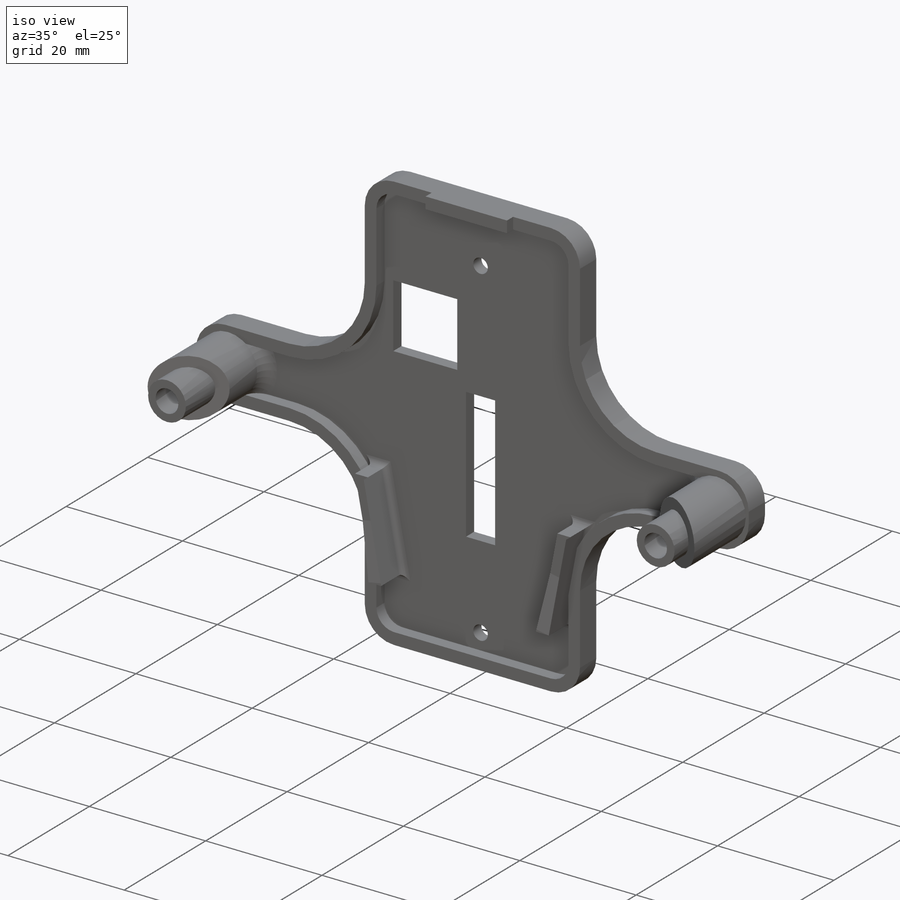
[diagram: iso view]
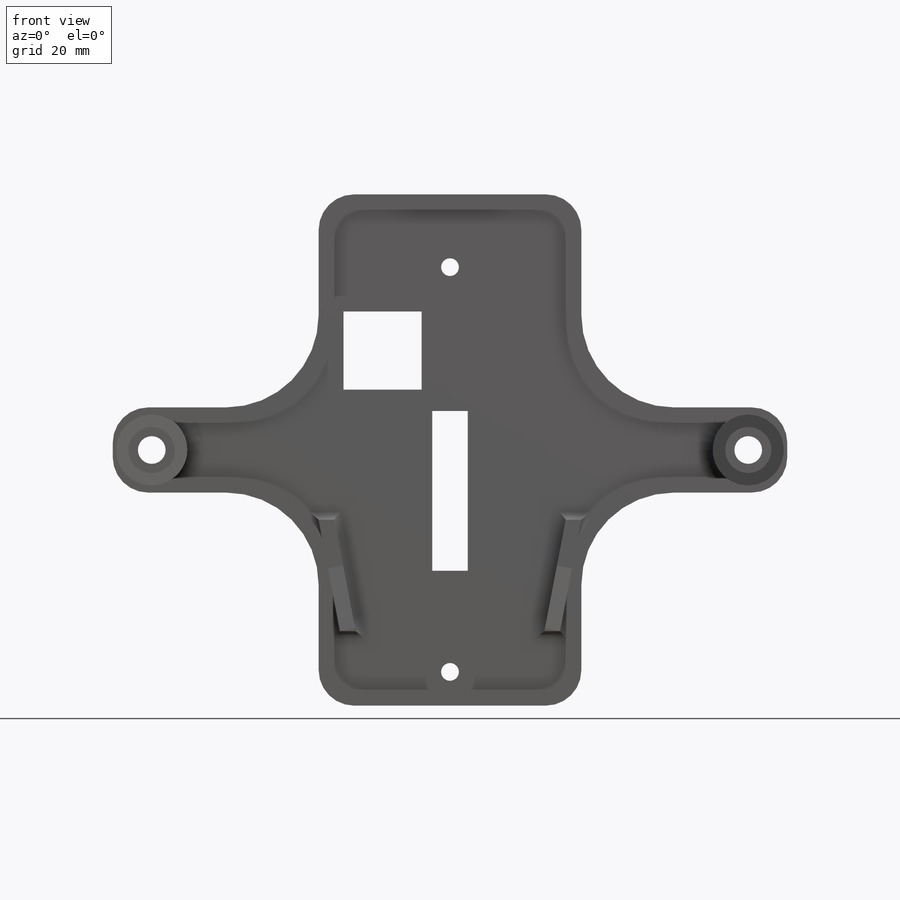
[diagram: front view]
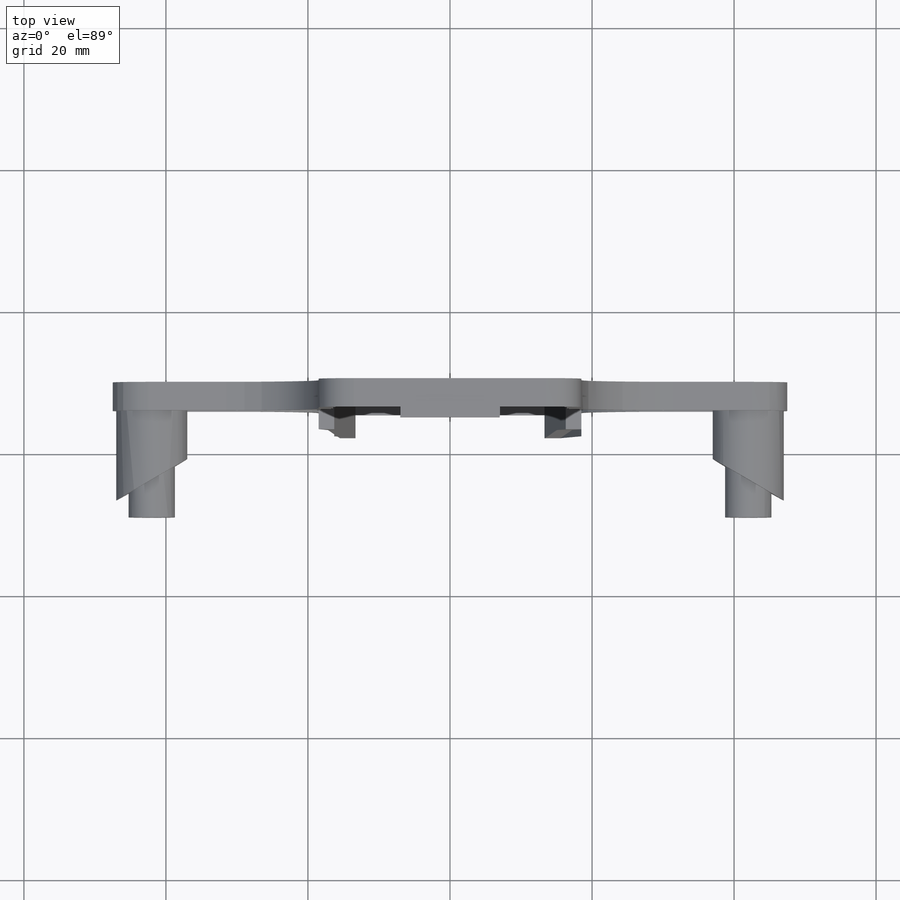
[diagram: top view]
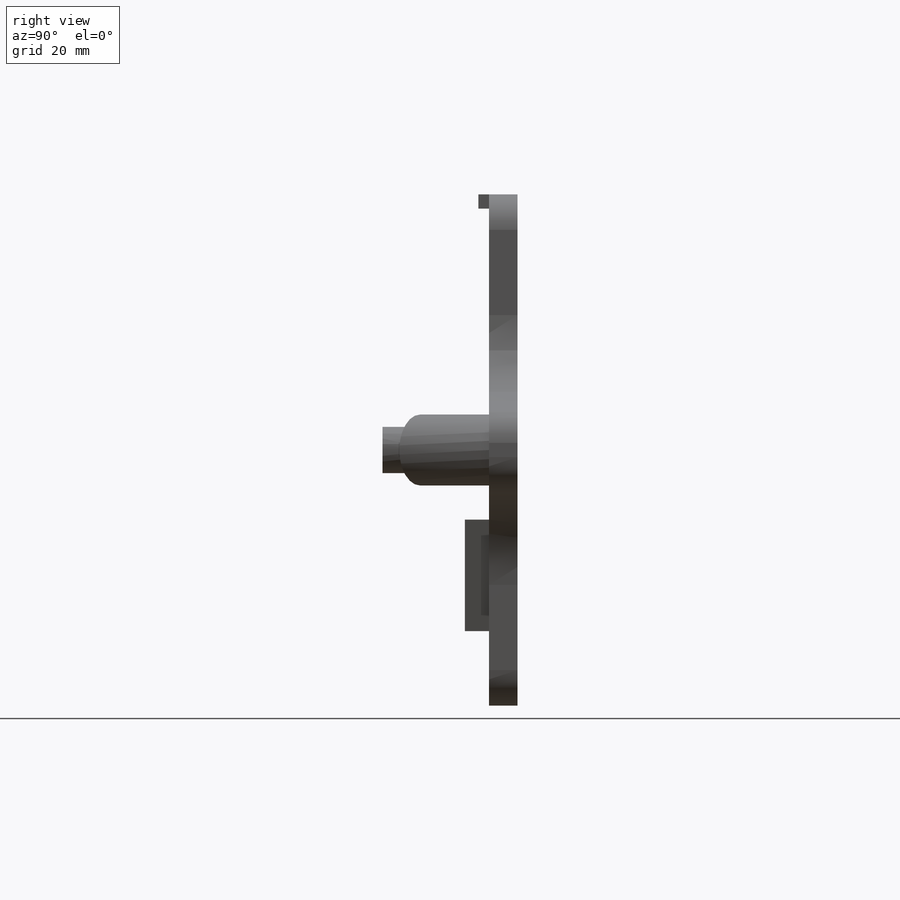
[diagram: right view]
SOLIDWORKS PART (.sldprt)
format: sldprt  version: not decoded by parser v0  size: 631,296 bytes
history: native  units: mm
features: sketch x25, fillet x20, cut_extrude x9, extrude x6, hole x4, plane x3, revolve x2, material x1 (+13 scaffold rows collapsed)
feature tree (83):
  scaffold x13  (default folders/planes/origin — collapsed)
  material  "Material <not specified>"
  plane  "Plane1"  Offset=5.5mm
  sketch  "Sketch1"
  extrude  "Boss-Extrude1"  Depth=4mm
  sketch  "Sketch2"
  extrude  "Boss-Extrude2"  Depth=1.5mm
  plane  "Plane2"
  sketch  "Sketch4"
  extrude  "Boss-Extrude3"  Depth=12.622843mm
  plane  "Plane3"
  sketch  "Sketch6"
  extrude  "Boss-Extrude4"  Depth=12.622843mm
  sketch  "Sketch7"
  cut_extrude  "Cut-Extrude1"  Depth=2mm
  sketch  "Sketch8"
  extrude  "Boss-Extrude5"  Depth=3.4mm
  sketch  "Sketch9"
  extrude  "Boss-Extrude6"  Depth=3.4mm
  sketch  "Sketch10"
  cut_extrude  "Cut-Extrude2"  Depth=4mm
  sketch  "Sketch11"
  cut_extrude  "Cut-Extrude3"  Depth=4mm
  sketch  "Sketch12"
  cut_extrude  "Cut-Extrude4"  Depth=1mm
  sketch  "Sketch13"
  cut_extrude  "Cut-Extrude5"  Depth=4mm
  sketch  "Sketch14"
  cut_extrude  "Cut-Extrude6"  Depth=1mm
  sketch  "Sketch15"
  cut_extrude  "Cut-Extrude7"  Depth=4mm
  sketch  "Sketch16"
  cut_extrude  "Cut-Extrude8"  Depth=2mm
  sketch  "Sketch17"
  cut_extrude  "Cut-Extrude9"  Depth=2mm
  sketch  "Sketch18"
  revolve  "Revolve1"  Angle=360deg
  sketch  "Sketch19"
  revolve  "Revolve2"  Angle=360deg
  hole  "Hole1"  Diameter=2.5mm Depth=2mm
  sketch  "Sketch21"
  sketch  "Sketch20"  dims[Diameter=2.5mm Depth=2.0mm]
  hole  "Hole2"  Diameter=2.5mm Depth=2mm
  sketch  "Sketch23"
  sketch  "Sketch22"  dims[Diameter=2.5mm Depth=2.0mm]
  hole  "Hole3"  Diameter=3.9mm Depth=19mm
  sketch  "Sketch25"
  sketch  "Sketch24"  dims[Diameter=3.9mm Depth=19.0mm C-Bore Diameter=7.5mm C-Bore Depth=9.5mm]
  hole  "Hole4"  Diameter=3.9mm Depth=19mm
  sketch  "Sketch27"
  sketch  "Sketch26"  dims[Diameter=3.9mm Depth=19.0mm C-Bore Diameter=7.5mm C-Bore Depth=9.5mm]
  fillet  "Fillet1"  Radius=1mm
  fillet  "Fillet2"  Radius=1mm
  fillet  "Fillet3"  Radius=2mm
  fillet  "Fillet4"  Radius=2mm
  fillet  "Fillet5"  Radius=3mm
  fillet  "Fillet6"  Radius=3mm
  fillet  "Fillet7"  Radius=3mm
  fillet  "Fillet8"  Radius=3mm
  fillet  "Fillet9"  Radius=5mm
  fillet  "Fillet10"  Radius=5mm
  fillet  "Fillet11"  Radius=5mm
  fillet  "Fillet12"  Radius=5mm
  fillet  "Fillet13"  Radius=5mm
  fillet  "Fillet14"  Radius=5mm
  fillet  "Fillet15"  Radius=5mm
  fillet  "Fillet16"  Radius=5mm
  fillet  "Fillet17"  Radius=13mm
  fillet  "Fillet18"  Radius=13mm
  fillet  "Fillet19"  Radius=15mm
  fillet  "Fillet20"  Radius=15mm
decode coverage: 45 of 66 modeling features carry decoded parameters
summary: Diameter pulled from absorbed wizard sketch
note: suppression state not decoded; provenance and decode notes live in map.json
